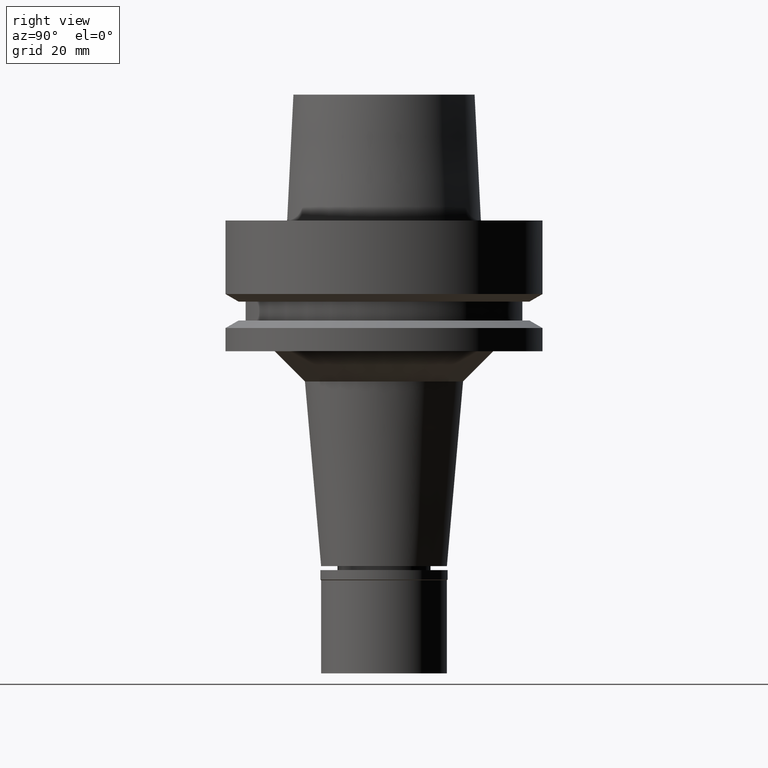
[diagram: clean part render]
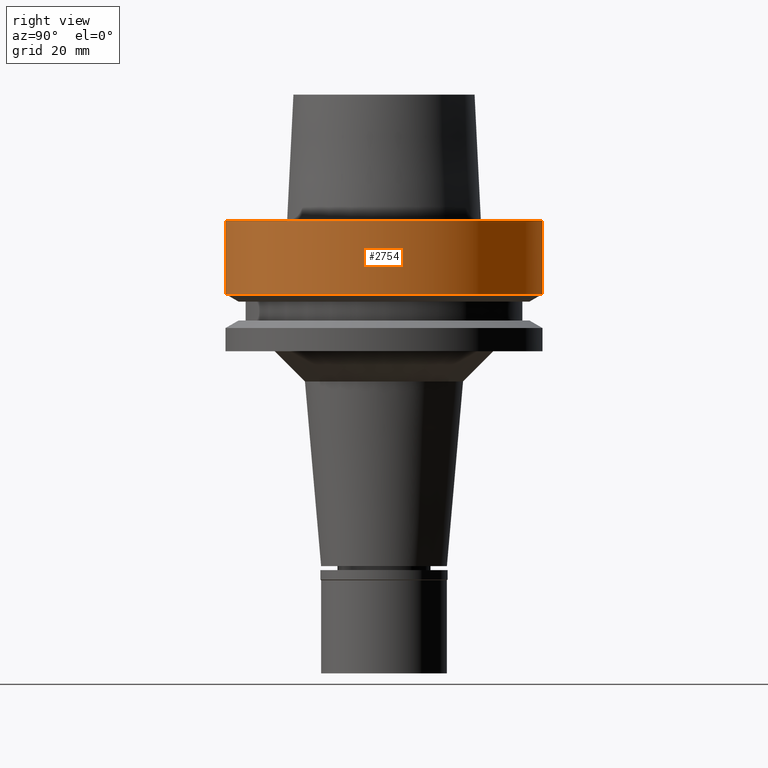
[diagram: same view with one face highlighted and labeled with its STEP entity id]
A machine part, right view. The second image highlights one B-rep face of the part: STEP entity #2754.
In plain terms, the highlighted cylindrical surface (partial cylindrical patch) has radius 31.5 mm, axis along (0, 0, 1).
Its self-contained STEP definition (entity closure, byte-faithful):
#3 = CIRCLE ( 'NONE', #1852, 31.50000000000000000 ) ;
#34 = EDGE_CURVE ( 'NONE', #1831, #1882, #1212, .T. ) ;
#73 = DIRECTION ( 'NONE',  ( 0.0000000000000000000, 1.000000000000000000, 0.0000000000000000000 ) ) ;
#107 = CYLINDRICAL_SURFACE ( 'NONE', #918, 31.50000000000000000 ) ;
#167 = EDGE_LOOP ( 'NONE', ( #2570, #912, #2550, #786 ) ) ;
#343 = DIRECTION ( 'NONE',  ( 0.0000000000000000000, 1.000000000000000000, 0.0000000000000000000 ) ) ;
#472 = DIRECTION ( 'NONE',  ( 0.0000000000000000000, 0.0000000000000000000, -1.000000000000000000 ) ) ;
#530 = CARTESIAN_POINT ( 'NONE',  ( 0.0000000000000000000, 0.0000000000000000000, -89.23999999999999488 ) ) ;
#619 = VERTEX_POINT ( 'NONE', #1720 ) ;
#757 = DIRECTION ( 'NONE',  ( 0.0000000000000000000, -1.000000000000000000, 0.0000000000000000000 ) ) ;
#786 = ORIENTED_EDGE ( 'NONE', *, *, #2151, .F. ) ;
#800 = EDGE_CURVE ( 'NONE', #1882, #2661, #1716, .T. ) ;
#832 = CARTESIAN_POINT ( 'NONE',  ( 0.0000000000000000000, -31.50000000000000000, -14.62250092523999889 ) ) ;
#912 = ORIENTED_EDGE ( 'NONE', *, *, #34, .T. ) ;
#918 = AXIS2_PLACEMENT_3D ( 'NONE', #530, #1018, #343 ) ;
#1018 = DIRECTION ( 'NONE',  ( 0.0000000000000000000, 0.0000000000000000000, 1.000000000000000000 ) ) ;
#1212 = LINE ( 'NONE', #2363, #1766 ) ;
#1312 = VECTOR ( 'NONE', #2756, 1000.000000000000000 ) ;
#1321 = CARTESIAN_POINT ( 'NONE',  ( 0.0000000000000000000, -31.50000000000000000, -1.989519660127999812E-13 ) ) ;
#1428 = LINE ( 'NONE', #2296, #1312 ) ;
#1586 = CARTESIAN_POINT ( 'NONE',  ( 0.0000000000000000000, 0.0000000000000000000, -1.989519660127999812E-13 ) ) ;
#1716 = CIRCLE ( 'NONE', #2077, 31.50000000000000000 ) ;
#1720 = CARTESIAN_POINT ( 'NONE',  ( 0.0000000000000000000, 31.50000000000000000, -1.989519660127999812E-13 ) ) ;
#1766 = VECTOR ( 'NONE', #1926, 1000.000000000000000 ) ;
#1826 = CARTESIAN_POINT ( 'NONE',  ( 0.0000000000000000000, 0.0000000000000000000, -14.62250092523999889 ) ) ;
#1831 = VERTEX_POINT ( 'NONE', #1321 ) ;
#1852 = AXIS2_PLACEMENT_3D ( 'NONE', #1586, #472, #73 ) ;
#1882 = VERTEX_POINT ( 'NONE', #832 ) ;
#1926 = DIRECTION ( 'NONE',  ( 0.0000000000000000000, -4.130355870612999632E-14, -1.000000000000000000 ) ) ;
#2077 = AXIS2_PLACEMENT_3D ( 'NONE', #1826, #2286, #757 ) ;
#2091 = EDGE_CURVE ( 'NONE', #619, #1831, #3, .T. ) ;
#2151 = EDGE_CURVE ( 'NONE', #619, #2661, #1428, .T. ) ;
#2286 = DIRECTION ( 'NONE',  ( 0.0000000000000000000, 0.0000000000000000000, 1.000000000000000000 ) ) ;
#2296 = CARTESIAN_POINT ( 'NONE',  ( 0.0000000000000000000, 31.50000000000000000, -1.231607408651000030E-13 ) ) ;
#2363 = CARTESIAN_POINT ( 'NONE',  ( 0.0000000000000000000, -31.50000000000000000, -1.231607408651000030E-13 ) ) ;
#2451 = CARTESIAN_POINT ( 'NONE',  ( 0.0000000000000000000, 31.50000000000000000, -14.62250092523999889 ) ) ;
#2550 = ORIENTED_EDGE ( 'NONE', *, *, #800, .T. ) ;
#2570 = ORIENTED_EDGE ( 'NONE', *, *, #2091, .T. ) ;
#2661 = VERTEX_POINT ( 'NONE', #2451 ) ;
#2717 = FACE_OUTER_BOUND ( 'NONE', #167, .T. ) ;
#2754 = ADVANCED_FACE ( 'NONE', ( #2717 ), #107, .T. ) ;
#2756 = DIRECTION ( 'NONE',  ( 0.0000000000000000000, 4.130355870612999632E-14, -1.000000000000000000 ) ) ;